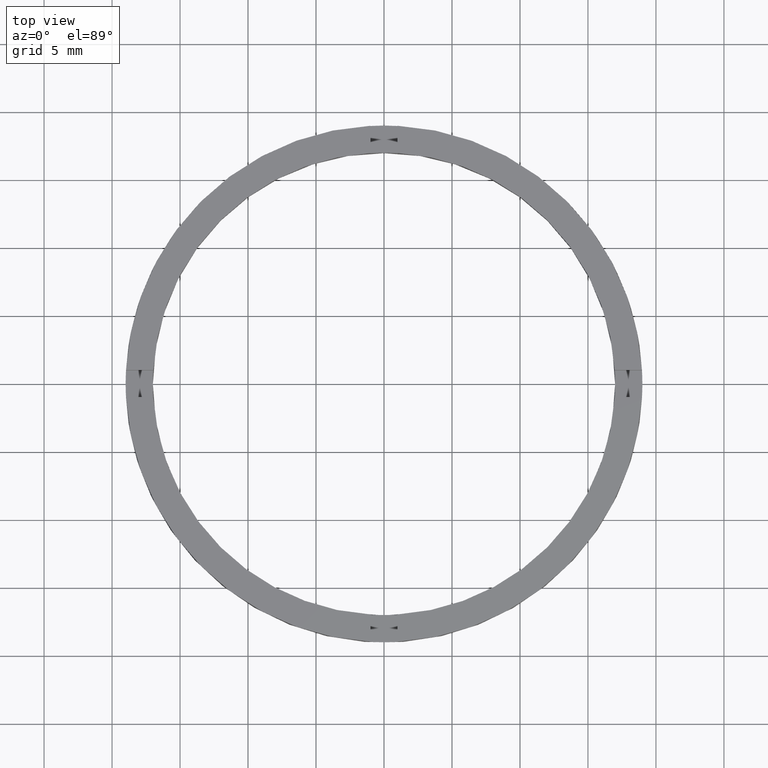
[diagram: clean part render]
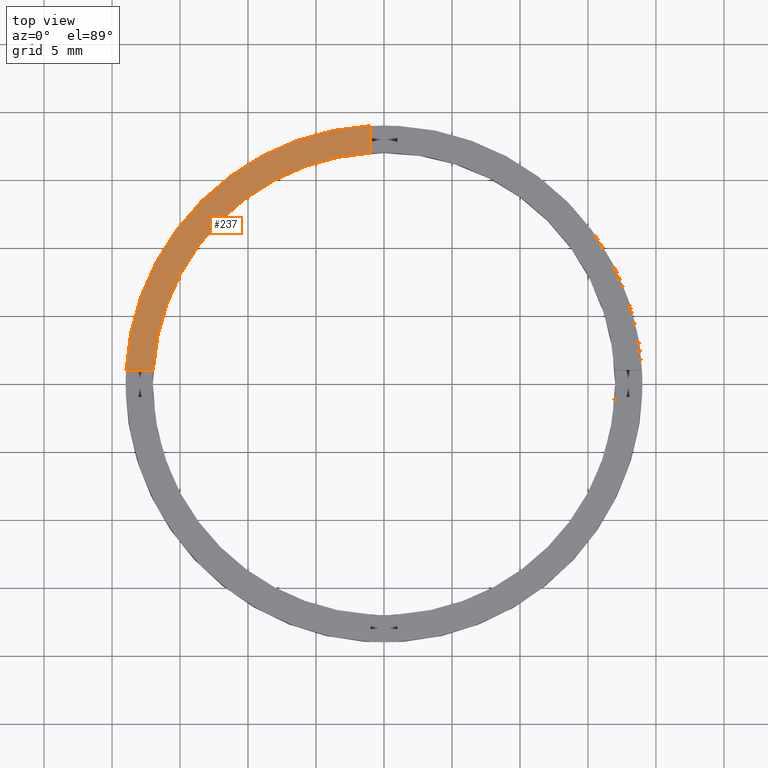
[diagram: same view with one face highlighted and labeled with its STEP entity id]
A machine part, top view. The second image highlights one B-rep face of the part: STEP entity #237.
In plain terms, the highlighted planar face has unit normal (0, 0, 1).
Its self-contained STEP definition (entity closure, byte-faithful):
#10 = CARTESIAN_POINT ( 'NONE',  ( -1.000000000000024869, 16.97056274847713553, 2.500000000000000000 ) ) ;
#13 = CARTESIAN_POINT ( 'NONE',  ( 0.000000000000000000, 0.000000000000000000, 2.500000000000000000 ) ) ;
#22 = CIRCLE ( 'NONE', #608, 19.00000000000000000 ) ;
#30 = VERTEX_POINT ( 'NONE', #10 ) ;
#51 = CARTESIAN_POINT ( 'NONE',  ( -9.000000000000184741, 0.9999999999999774625, 2.500000000000000000 ) ) ;
#108 = CARTESIAN_POINT ( 'NONE',  ( -1.000000000000025313, 9.000000000000000000, 2.500000000000000000 ) ) ;
#118 = DIRECTION ( 'NONE',  ( -0.000000000000000000, -1.000000000000000000, -0.000000000000000000 ) ) ;
#125 = FACE_OUTER_BOUND ( 'NONE', #465, .T. ) ;
#129 = CARTESIAN_POINT ( 'NONE',  ( -18.97366596101027625, 0.9999999999999756861, 2.500000000000000000 ) ) ;
#200 = VERTEX_POINT ( 'NONE', #372 ) ;
#215 = ORIENTED_EDGE ( 'NONE', *, *, #775, .F. ) ;
#227 = DIRECTION ( 'NONE',  ( 1.000000000000000000, 0.000000000000000000, -0.000000000000000000 ) ) ;
#237 = ADVANCED_FACE ( 'NONE', ( #125 ), #713, .T. ) ;
#240 = CARTESIAN_POINT ( 'NONE',  ( -1.000000000000024869, 18.97366596101027270, 2.500000000000000000 ) ) ;
#255 = AXIS2_PLACEMENT_3D ( 'NONE', #347, #284, #767 ) ;
#284 = DIRECTION ( 'NONE',  ( 0.000000000000000000, 0.000000000000000000, 1.000000000000000000 ) ) ;
#304 = ORIENTED_EDGE ( 'NONE', *, *, #521, .T. ) ;
#312 = CIRCLE ( 'NONE', #255, 17.00000000000000000 ) ;
#316 = EDGE_CURVE ( 'NONE', #712, #30, #370, .T. ) ;
#328 = LINE ( 'NONE', #51, #583 ) ;
#341 = DIRECTION ( 'NONE',  ( 0.000000000000000000, 0.000000000000000000, 1.000000000000000000 ) ) ;
#347 = CARTESIAN_POINT ( 'NONE',  ( 0.000000000000000000, 0.000000000000000000, 2.500000000000000000 ) ) ;
#352 = AXIS2_PLACEMENT_3D ( 'NONE', #669, #356, #227 ) ;
#356 = DIRECTION ( 'NONE',  ( 0.000000000000000000, 0.000000000000000000, 1.000000000000000000 ) ) ;
#370 = LINE ( 'NONE', #108, #388 ) ;
#372 = CARTESIAN_POINT ( 'NONE',  ( -16.97056274847714263, 0.9999999999999759082, 2.500000000000000000 ) ) ;
#388 = VECTOR ( 'NONE', #118, 1000.000000000000000 ) ;
#464 = VERTEX_POINT ( 'NONE', #129 ) ;
#465 = EDGE_LOOP ( 'NONE', ( #484, #304, #482, #215 ) ) ;
#482 = ORIENTED_EDGE ( 'NONE', *, *, #695, .F. ) ;
#484 = ORIENTED_EDGE ( 'NONE', *, *, #316, .F. ) ;
#509 = DIRECTION ( 'NONE',  ( 1.000000000000000000, 0.000000000000000000, 0.000000000000000000 ) ) ;
#521 = EDGE_CURVE ( 'NONE', #712, #464, #22, .T. ) ;
#583 = VECTOR ( 'NONE', #592, 1000.000000000000000 ) ;
#592 = DIRECTION ( 'NONE',  ( -1.000000000000000000, -1.734723475976806848E-16, 0.000000000000000000 ) ) ;
#608 = AXIS2_PLACEMENT_3D ( 'NONE', #13, #341, #509 ) ;
#669 = CARTESIAN_POINT ( 'NONE',  ( 0.000000000000000000, 0.000000000000000000, 2.500000000000000000 ) ) ;
#695 = EDGE_CURVE ( 'NONE', #200, #464, #328, .T. ) ;
#712 = VERTEX_POINT ( 'NONE', #240 ) ;
#713 = PLANE ( 'NONE',  #352 ) ;
#767 = DIRECTION ( 'NONE',  ( 1.000000000000000000, 0.000000000000000000, 0.000000000000000000 ) ) ;
#775 = EDGE_CURVE ( 'NONE', #30, #200, #312, .T. ) ;